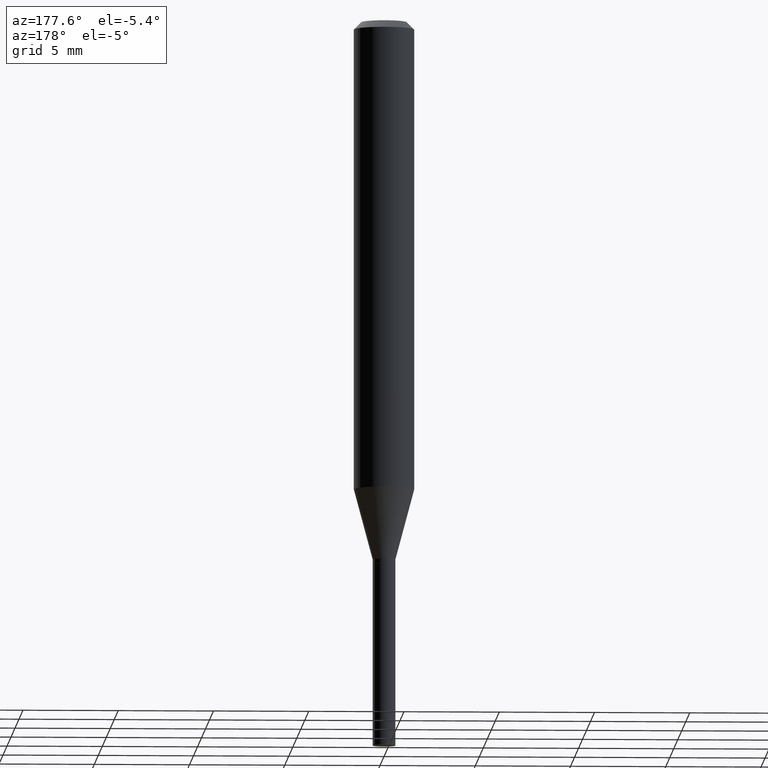
[diagram: clean part render]
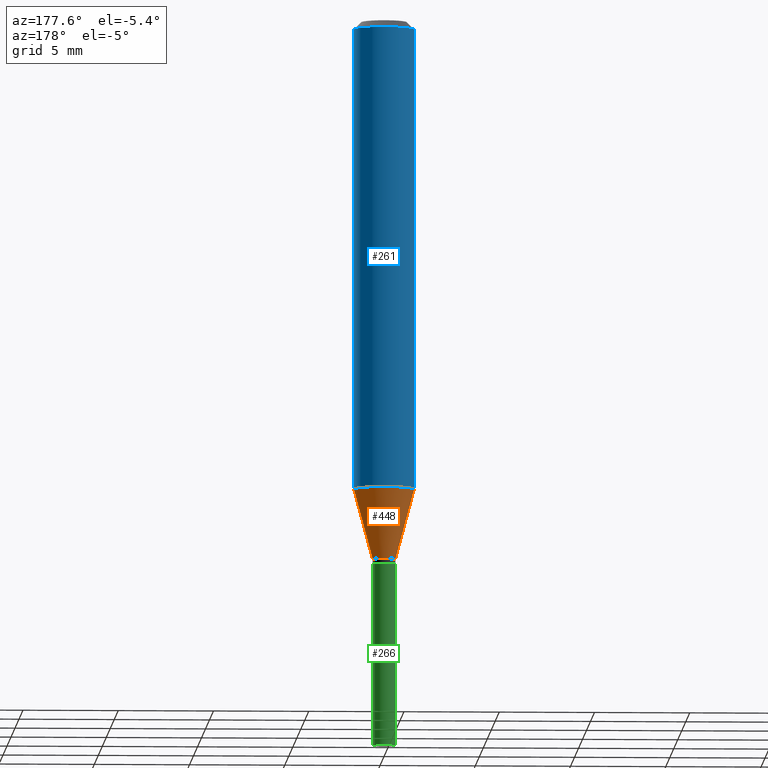
[diagram: same view with three faces highlighted in distinct colors, each labeled with its STEP entity id]
A machine part, auxiliary view with three faces highlighted in distinct colors.
Their STEP definitions:

[orange] entity #448 — the highlighted conical surface has half-angle 15 deg.
#5 = EDGE_CURVE ( 'NONE', #158, #209, #401, .T. ) ;
#24 = ORIENTED_EDGE ( 'NONE', *, *, #202, .F. ) ;
#27 = FACE_OUTER_BOUND ( 'NONE', #185, .T. ) ;
#53 = VERTEX_POINT ( 'NONE', #305 ) ;
#76 = AXIS2_PLACEMENT_3D ( 'NONE', #352, #313, #93 ) ;
#88 = CARTESIAN_POINT ( 'NONE',  ( -0.02350000000000006598, -3.722532668567641270E-15, -1.114000000000000101 ) ) ;
#93 = DIRECTION ( 'NONE',  ( 1.000000000000000000, -6.982962677686271444E-15, 0.000000000000000000 ) ) ;
#105 = CARTESIAN_POINT ( 'NONE',  ( -0.02350000000000006598, -3.329884312964718745E-15, -1.114000000000000101 ) ) ;
#117 = VECTOR ( 'NONE', #245, 39.37007874015748854 ) ;
#126 = DIRECTION ( 'NONE',  ( 1.000000000000000000, -6.982962677686271444E-15, 0.000000000000000000 ) ) ;
#138 = EDGE_CURVE ( 'NONE', #158, #374, #326, .T. ) ;
#142 = DIRECTION ( 'NONE',  ( -2.445468806185136597E-29, 3.491481338843145583E-15, 1.000000000000000000 ) ) ;
#158 = VERTEX_POINT ( 'NONE', #161 ) ;
#161 = CARTESIAN_POINT ( 'NONE',  ( 0.02350000000000006598, -4.053609834396893003E-15, -1.114000000000000101 ) ) ;
#168 = CARTESIAN_POINT ( 'NONE',  ( 0.06250000000000000000, -3.817760334567251294E-15, -0.9684500185048144916 ) ) ;
#171 = CARTESIAN_POINT ( 'NONE',  ( 2.724252250090242644E-29, -3.889510211471265357E-15, -1.114000000000000101 ) ) ;
#185 = EDGE_LOOP ( 'NONE', ( #316, #217, #24, #249 ) ) ;
#192 = CARTESIAN_POINT ( 'NONE',  ( 0.02350000000000006598, -4.053609834396893003E-15, -1.114000000000000101 ) ) ;
#202 = EDGE_CURVE ( 'NONE', #374, #53, #439, .T. ) ;
#209 = VERTEX_POINT ( 'NONE', #105 ) ;
#217 = ORIENTED_EDGE ( 'NONE', *, *, #402, .T. ) ;
#229 = AXIS2_PLACEMENT_3D ( 'NONE', #321, #142, #459 ) ;
#245 = DIRECTION ( 'NONE',  ( -0.2588190451025211836, 5.211531920934547886E-15, 0.9659258262890679791 ) ) ;
#249 = ORIENTED_EDGE ( 'NONE', *, *, #138, .F. ) ;
#267 = CONICAL_SURFACE ( 'NONE', #76, 0.02350000000000006598, 0.2617993877991499074 ) ;
#288 = VECTOR ( 'NONE', #294, 39.37007874015748854 ) ;
#294 = DIRECTION ( 'NONE',  ( 0.2588190451025211836, 1.565188264969622559E-15, 0.9659258262890679791 ) ) ;
#305 = CARTESIAN_POINT ( 'NONE',  ( -0.06250000000000000000, -2.937235957361797009E-15, -0.9684500185048144916 ) ) ;
#313 = DIRECTION ( 'NONE',  ( -2.445468806185136597E-29, 3.491481338843145583E-15, 1.000000000000000000 ) ) ;
#314 = DIRECTION ( 'NONE',  ( -2.445468806185136597E-29, 3.491481338843145583E-15, 1.000000000000000000 ) ) ;
#316 = ORIENTED_EDGE ( 'NONE', *, *, #5, .T. ) ;
#321 = CARTESIAN_POINT ( 'NONE',  ( 2.368314310602942149E-29, -3.381325167211859231E-15, -0.9684500185048144916 ) ) ;
#326 = LINE ( 'NONE', #192, #288 ) ;
#352 = CARTESIAN_POINT ( 'NONE',  ( 2.724252250090242644E-29, -3.889510211471265357E-15, -1.114000000000000101 ) ) ;
#374 = VERTEX_POINT ( 'NONE', #168 ) ;
#390 = AXIS2_PLACEMENT_3D ( 'NONE', #171, #314, #126 ) ;
#401 = CIRCLE ( 'NONE', #390, 0.02350000000000006598 ) ;
#402 = EDGE_CURVE ( 'NONE', #209, #53, #413, .T. ) ;
#413 = LINE ( 'NONE', #88, #117 ) ;
#439 = CIRCLE ( 'NONE', #229, 0.06250000000000000000 ) ;
#448 = ADVANCED_FACE ( 'NONE', ( #27 ), #267, .T. ) ;
#459 = DIRECTION ( 'NONE',  ( 1.000000000000000000, -6.982962677686270655E-15, 0.000000000000000000 ) ) ;

[blue] entity #261 — the highlighted cylindrical surface (edge-blend (fillet) strip) has radius 1.5875 mm, axis along (-0, 0, 1).
#8 = EDGE_CURVE ( 'NONE', #374, #295, #407, .T. ) ;
#9 = CYLINDRICAL_SURFACE ( 'NONE', #36, 0.06250000000000000000 ) ;
#15 = ORIENTED_EDGE ( 'NONE', *, *, #8, .F. ) ;
#26 = CARTESIAN_POINT ( 'NONE',  ( -0.06250000000000000000, 4.440892098500626162E-16, -3.074334431409316114E-30 ) ) ;
#30 = DIRECTION ( 'NONE',  ( -2.445468806185136597E-29, 3.491481338843145583E-15, 1.000000000000000000 ) ) ;
#36 = AXIS2_PLACEMENT_3D ( 'NONE', #121, #74, #332 ) ;
#53 = VERTEX_POINT ( 'NONE', #305 ) ;
#55 = ORIENTED_EDGE ( 'NONE', *, *, #195, .T. ) ;
#71 = FACE_OUTER_BOUND ( 'NONE', #213, .T. ) ;
#74 = DIRECTION ( 'NONE',  ( -2.445468806185136597E-29, 3.491481338843145583E-15, 1.000000000000000000 ) ) ;
#96 = VERTEX_POINT ( 'NONE', #155 ) ;
#102 = CARTESIAN_POINT ( 'NONE',  ( 3.668203209277705088E-31, -5.237222008264718399E-17, -0.01499999999999999944 ) ) ;
#121 = CARTESIAN_POINT ( 'NONE',  ( 0.000000000000000000, 0.000000000000000000, 0.000000000000000000 ) ) ;
#142 = DIRECTION ( 'NONE',  ( -2.445468806185136597E-29, 3.491481338843145583E-15, 1.000000000000000000 ) ) ;
#151 = CARTESIAN_POINT ( 'NONE',  ( 0.06250000000000000000, -4.888073874380388472E-16, -0.01499999999999999944 ) ) ;
#155 = CARTESIAN_POINT ( 'NONE',  ( -0.06250000000000000000, -1.272759483797190539E-15, -0.01499999999999999944 ) ) ;
#162 = VECTOR ( 'NONE', #410, 39.37007874015748143 ) ;
#168 = CARTESIAN_POINT ( 'NONE',  ( 0.06250000000000000000, -3.817760334567251294E-15, -0.9684500185048144916 ) ) ;
#183 = AXIS2_PLACEMENT_3D ( 'NONE', #102, #30, #184 ) ;
#184 = DIRECTION ( 'NONE',  ( 1.000000000000000000, -6.982962677686266711E-15, 0.000000000000000000 ) ) ;
#195 = EDGE_CURVE ( 'NONE', #53, #96, #425, .T. ) ;
#199 = EDGE_CURVE ( 'NONE', #295, #96, #353, .T. ) ;
#202 = EDGE_CURVE ( 'NONE', #374, #53, #439, .T. ) ;
#213 = EDGE_LOOP ( 'NONE', ( #253, #55, #246, #15 ) ) ;
#229 = AXIS2_PLACEMENT_3D ( 'NONE', #321, #142, #459 ) ;
#246 = ORIENTED_EDGE ( 'NONE', *, *, #199, .F. ) ;
#253 = ORIENTED_EDGE ( 'NONE', *, *, #202, .T. ) ;
#259 = VECTOR ( 'NONE', #289, 39.37007874015748143 ) ;
#261 = ADVANCED_FACE ( 'NONE', ( #71 ), #9, .T. ) ;
#289 = DIRECTION ( 'NONE',  ( -2.445468806185136877E-29, 3.491481338843145188E-15, 1.000000000000000000 ) ) ;
#295 = VERTEX_POINT ( 'NONE', #151 ) ;
#305 = CARTESIAN_POINT ( 'NONE',  ( -0.06250000000000000000, -2.937235957361797009E-15, -0.9684500185048144916 ) ) ;
#321 = CARTESIAN_POINT ( 'NONE',  ( 2.368314310602942149E-29, -3.381325167211859231E-15, -0.9684500185048144916 ) ) ;
#332 = DIRECTION ( 'NONE',  ( 1.000000000000000000, -6.982962677686266711E-15, 4.876176775795935793E-29 ) ) ;
#353 = CIRCLE ( 'NONE', #183, 0.06250000000000000000 ) ;
#374 = VERTEX_POINT ( 'NONE', #168 ) ;
#387 = CARTESIAN_POINT ( 'NONE',  ( 0.06250000000000000000, -4.364351673553916694E-16, 3.047610484872459871E-30 ) ) ;
#407 = LINE ( 'NONE', #387, #162 ) ;
#410 = DIRECTION ( 'NONE',  ( -2.445468806185136877E-29, 3.491481338843145188E-15, 1.000000000000000000 ) ) ;
#425 = LINE ( 'NONE', #26, #259 ) ;
#439 = CIRCLE ( 'NONE', #229, 0.06250000000000000000 ) ;
#459 = DIRECTION ( 'NONE',  ( 1.000000000000000000, -6.982962677686270655E-15, 0.000000000000000000 ) ) ;

[green] entity #266 — the highlighted cylindrical surface (edge-blend (fillet) strip) has radius 0.5969 mm, axis along (-0, 0, 1).
#12 = EDGE_CURVE ( 'NONE', #180, #87, #328, .T. ) ;
#32 = CARTESIAN_POINT ( 'NONE',  ( -0.02350000000000000352, 1.669775429036235687E-16, -1.155949746209903035E-30 ) ) ;
#49 = ORIENTED_EDGE ( 'NONE', *, *, #211, .T. ) ;
#51 = AXIS2_PLACEMENT_3D ( 'NONE', #396, #365, #331 ) ;
#66 = CARTESIAN_POINT ( 'NONE',  ( 0.02350000000000000352, -1.640996229256272766E-16, 1.145901542312045115E-30 ) ) ;
#82 = CARTESIAN_POINT ( 'NONE',  ( -0.02350000000000000352, -4.413845973658583505E-15, -1.124000000000000110 ) ) ;
#87 = VERTEX_POINT ( 'NONE', #112 ) ;
#91 = DIRECTION ( 'NONE',  ( -2.445468806185136597E-29, 3.491481338843145583E-15, 1.000000000000000000 ) ) ;
#94 = DIRECTION ( 'NONE',  ( 1.000000000000000000, -6.982962677686269866E-15, 0.000000000000000000 ) ) ;
#101 = ORIENTED_EDGE ( 'NONE', *, *, #420, .F. ) ;
#112 = CARTESIAN_POINT ( 'NONE',  ( -0.02350000000000000352, -4.413845973658583505E-15, -1.500000000000000222 ) ) ;
#124 = VECTOR ( 'NONE', #149, 39.37007874015748143 ) ;
#129 = EDGE_CURVE ( 'NONE', #180, #424, #181, .T. ) ;
#149 = DIRECTION ( 'NONE',  ( -2.445468806185136877E-29, 3.491481338843145188E-15, 1.000000000000000000 ) ) ;
#180 = VERTEX_POINT ( 'NONE', #462 ) ;
#181 = LINE ( 'NONE', #66, #252 ) ;
#193 = AXIS2_PLACEMENT_3D ( 'NONE', #416, #454, #94 ) ;
#197 = CYLINDRICAL_SURFACE ( 'NONE', #51, 0.02350000000000000352 ) ;
#211 = EDGE_CURVE ( 'NONE', #87, #307, #216, .T. ) ;
#216 = LINE ( 'NONE', #32, #124 ) ;
#222 = ORIENTED_EDGE ( 'NONE', *, *, #12, .T. ) ;
#223 = CIRCLE ( 'NONE', #237, 0.02350000000000000352 ) ;
#237 = AXIS2_PLACEMENT_3D ( 'NONE', #248, #91, #376 ) ;
#248 = CARTESIAN_POINT ( 'NONE',  ( 2.748706938152093629E-29, -3.924425024859695428E-15, -1.124000000000000110 ) ) ;
#252 = VECTOR ( 'NONE', #318, 39.37007874015748143 ) ;
#264 = FACE_OUTER_BOUND ( 'NONE', #412, .T. ) ;
#266 = ADVANCED_FACE ( 'NONE', ( #264 ), #197, .T. ) ;
#307 = VERTEX_POINT ( 'NONE', #82 ) ;
#318 = DIRECTION ( 'NONE',  ( -2.445468806185136877E-29, 3.491481338843145188E-15, 1.000000000000000000 ) ) ;
#328 = CIRCLE ( 'NONE', #193, 0.02350000000000000352 ) ;
#331 = DIRECTION ( 'NONE',  ( 1.000000000000000000, -6.982962677686265922E-15, 4.876176775795935793E-29 ) ) ;
#365 = DIRECTION ( 'NONE',  ( -2.445468806185136597E-29, 3.491481338843145583E-15, 1.000000000000000000 ) ) ;
#376 = DIRECTION ( 'NONE',  ( 1.000000000000000000, -6.982962677686269866E-15, 0.000000000000000000 ) ) ;
#377 = ORIENTED_EDGE ( 'NONE', *, *, #129, .F. ) ;
#378 = CARTESIAN_POINT ( 'NONE',  ( 0.02350000000000000352, -4.088524647785323075E-15, -1.124000000000000110 ) ) ;
#396 = CARTESIAN_POINT ( 'NONE',  ( 0.000000000000000000, 0.000000000000000000, 0.000000000000000000 ) ) ;
#412 = EDGE_LOOP ( 'NONE', ( #222, #49, #101, #377 ) ) ;
#416 = CARTESIAN_POINT ( 'NONE',  ( 3.668203209277704895E-29, -5.237222008264718177E-15, -1.500000000000000222 ) ) ;
#420 = EDGE_CURVE ( 'NONE', #424, #307, #223, .T. ) ;
#424 = VERTEX_POINT ( 'NONE', #378 ) ;
#454 = DIRECTION ( 'NONE',  ( -2.445468806185136597E-29, 3.491481338843145583E-15, 1.000000000000000000 ) ) ;
#462 = CARTESIAN_POINT ( 'NONE',  ( 0.02350000000000000352, -5.401321631190345823E-15, -1.500000000000000222 ) ) ;